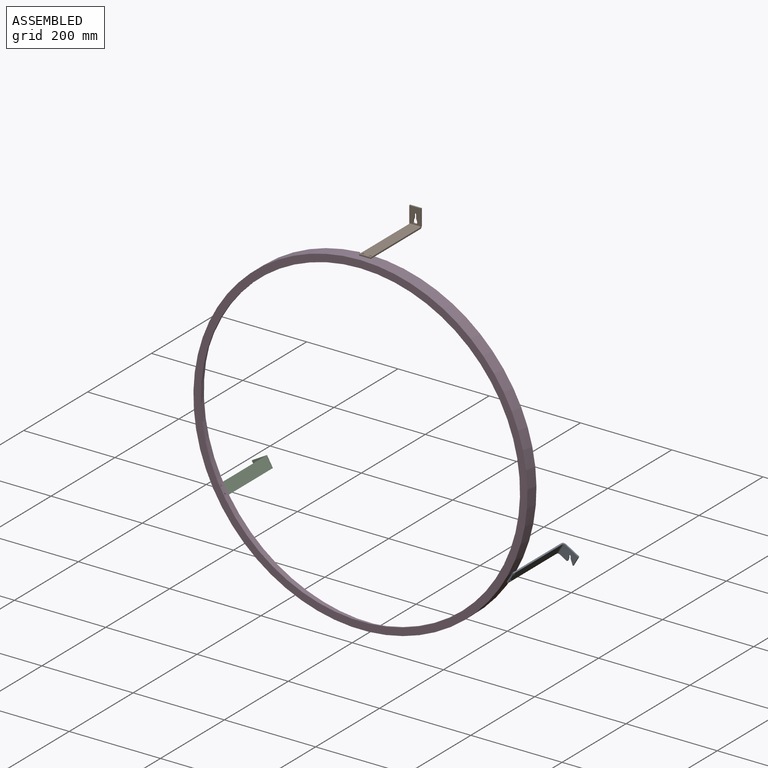
[diagram: assembled view]
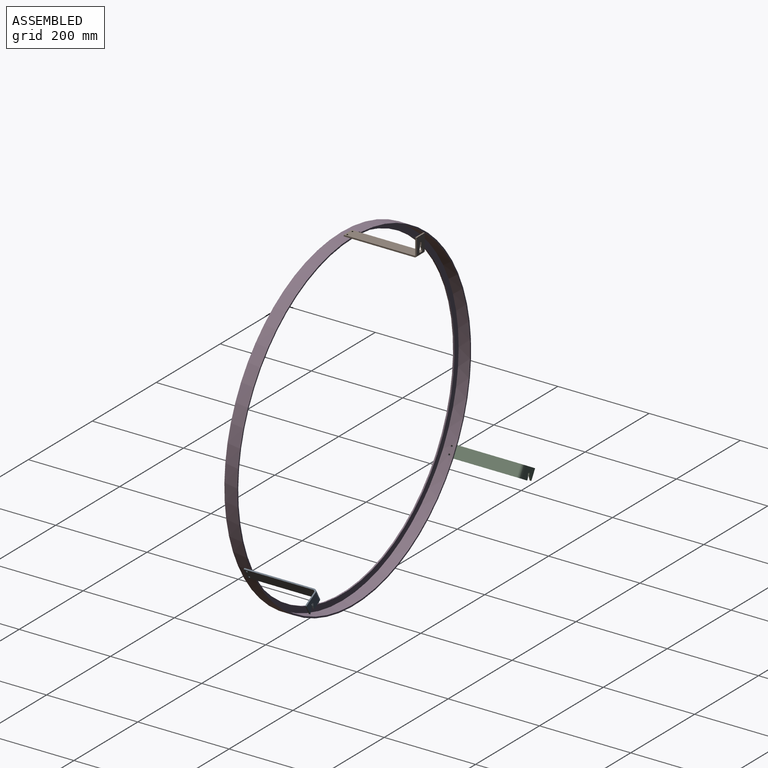
[diagram: assembled view, second angle]
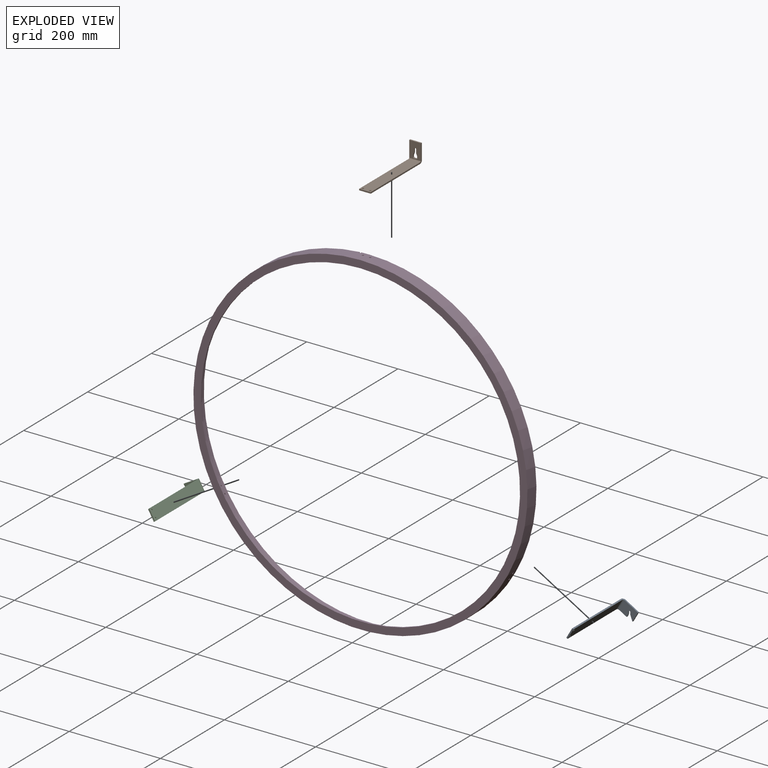
[diagram: exploded view]
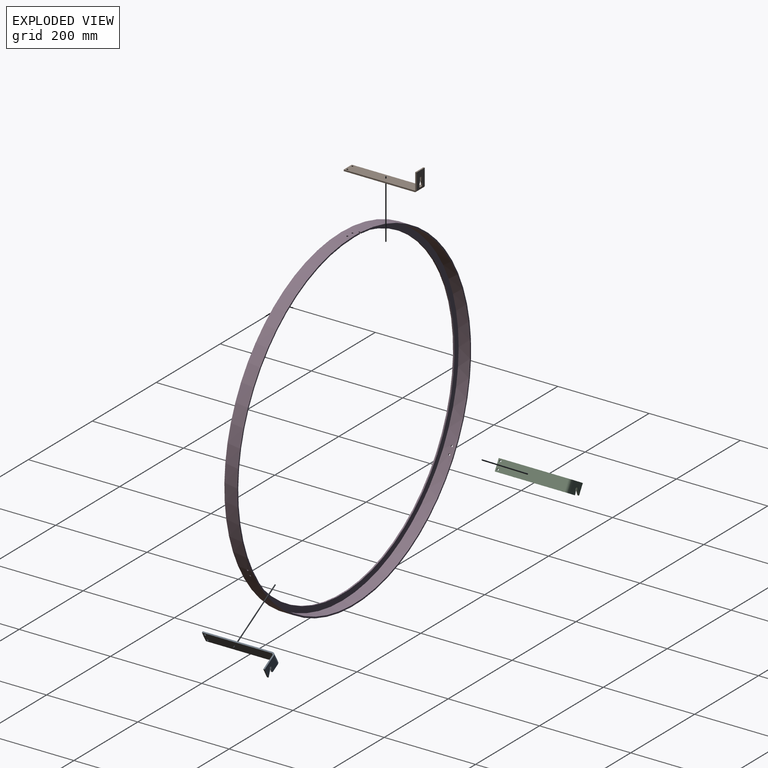
[diagram: exploded view, second angle]
ASSEMBLY  parts=4 mates=6
PART A: 23 faces, bbox 25.3x40x160 mm
  f0: plane 4.07x3.1mm, normal (-0.5,0.87,0), area 14.6mm2, adj f1,f7,f8,f9
  f1: cylinder r=2.4mm len=4.48mm, axis (0,0,-1), area 23.4mm2, adj f0,f2,f8,f9
  f2: plane 4.07x3.1mm, normal (0.5,-0.87,0), area 14.6mm2, adj f1,f3,f8,f9
  f3: plane 6.4x3.1mm, normal (0.17,-0.98,0), area 20.1mm2, adj f2,f8,f9,f11
  f4: plane 18.3x3.1mm, normal (-1,0,0), area 56.7mm2, adj f8,f9,f11,f20
  f5: plane 32.9x3.1mm, normal (1,0,0), area 102mm2, adj f6,f8,f9,f19
  f6: plane 23.53x3.1mm, normal (0,-1,0), area 73mm2, adj f5,f8,f9,f10
  f7: plane 9.98x8.37mm, normal (-0.77,0.64,0), area 40.4mm2, adj f0,f8,f9,f10
  f8: plane 32.9x25.3mm, normal (0,0,-1), area 712.4mm2, adj f0,f1,f2,f3,f4,f5,f6,f7
  f9: plane 32.9x25.3mm, normal (0,0,1), area 712.4mm2, adj f0,f1,f2,f3,f4,f5,f6,f7
  f10: plane 3.1x0.77mm, normal (-0.91,-0.42,0), area 2.6mm2, adj f6,f7,f8,f9
  f11: plane 3.1x0.99mm, normal (-0.64,-0.77,0), area 4mm2, adj f3,f4,f8,f9
  f12: plane 152.9x3.1mm, normal (-1,0,0), area 474mm2, adj f13,f17,f18,f20
  f13: plane 25.3x3.1mm, normal (0,0,1), area 78.4mm2, adj f12,f14,f17,f18
  f14: plane 152.9x3.1mm, normal (1,0,0), area 474mm2, adj f13,f17,f18,f19
  f15: cylinder r=1.98mm len=3.95mm, axis (0,1,0), area 38.5mm2, adj f17,f18
  f16: cylinder r=1.98mm len=3.95mm, axis (0,1,0), area 38.5mm2, adj f17,f18
  f17: plane 152.9x25.3mm, normal (0,1,0), area 3843.9mm2, adj f12,f13,f14,f15,f16,f21
  f18: plane 152.9x25.3mm, normal (0,-1,0), area 3843.9mm2, adj f12,f13,f14,f15,f16,f22
  f19: plane 7.1x7.1mm, normal (1,0,0), area 27mm2, adj f5,f14,f21,f22
  f20: plane 7.1x7.1mm, normal (-1,0,0), area 27mm2, adj f4,f12,f21,f22
  f21: cylinder r=7.1mm len=25.3mm, axis (1,0,0), area 282.2mm2, adj f8,f17,f19,f20
  f22: cylinder r=4mm len=25.3mm, axis (1,0,0), area 159mm2, adj f9,f18,f19,f20
PART B: 28 faces, bbox 25.3x40x160 mm
  f0: plane 4.2x3.1mm, normal (0,-1,0), area 13mm2, adj f1,f14,f15,f16
  f1: cylinder r=2.4mm len=3.1mm, axis (0,0,-1), area 11.7mm2, adj f0,f2,f15,f16
  f2: plane 3.1x2.78mm, normal (1,0,0), area 8.6mm2, adj f1,f3,f15,f16
  f3: cylinder r=2.4mm len=3.1mm, axis (0,0,-1), area 2.9mm2, adj f2,f4,f15,f16
  f4: plane 4.63x3.1mm, normal (0.92,0.38,0), area 15.5mm2, adj f3,f5,f15,f16
  f5: plane 7.7x3.1mm, normal (1,0,0), area 23.9mm2, adj f4,f6,f15,f16
  f6: cylinder r=2.4mm len=4.8mm, axis (0,0,-1), area 23.4mm2, adj f5,f7,f15,f16
  f7: plane 7.7x3.1mm, normal (-1,0,0), area 23.9mm2, adj f6,f8,f15,f16
  f8: plane 4.63x3.1mm, normal (-0.92,0.38,0), area 15.5mm2, adj f7,f9,f15,f16
  f9: cylinder r=2.4mm len=3.1mm, axis (0,0,-1), area 2.9mm2, adj f8,f10,f15,f16
  f10: plane 3.1x2.78mm, normal (-1,0,0), area 8.6mm2, adj f9,f14,f15,f16
  f11: plane 34.9x3.1mm, normal (-1,0,0), area 108.2mm2, adj f13,f15,f16,f25
  f12: plane 34.9x3.1mm, normal (1,0,0), area 108.2mm2, adj f13,f15,f16,f24
  f13: plane 25.3x3.1mm, normal (0,-1,0), area 78.4mm2, adj f11,f12,f15,f16
  f14: cylinder r=2.4mm len=3.1mm, axis (0,0,-1), area 11.7mm2, adj f0,f10,f15,f16
  f15: plane 34.9x25.3mm, normal (0,0,-1), area 753.5mm2, adj f0,f1,f2,f3,f4,f5,f6,f7
  f16: plane 34.9x25.3mm, normal (0,0,1), area 753.5mm2, adj f0,f1,f2,f3,f4,f5,f6,f7
  f17: plane 154.9x3.1mm, normal (-1,0,0), area 480.2mm2, adj f18,f22,f23,f25
  f18: plane 25.3x3.1mm, normal (0,0,1), area 78.4mm2, adj f17,f19,f22,f23
  f19: plane 154.9x3.1mm, normal (1,0,0), area 480.2mm2, adj f18,f22,f23,f24
  f20: cylinder r=1.98mm len=3.95mm, axis (0,1,0), area 38.5mm2, adj f22,f23
  f21: cylinder r=1.98mm len=3.95mm, axis (0,1,0), area 38.5mm2, adj f22,f23
  f22: plane 154.9x25.3mm, normal (0,1,0), area 3894.5mm2, adj f17,f18,f19,f20,f21,f26
  f23: plane 154.9x25.3mm, normal (0,-1,0), area 3894.5mm2, adj f17,f18,f19,f20,f21,f27
  f24: plane 5.1x5.1mm, normal (1,0,0), area 17.3mm2, adj f12,f19,f26,f27
  f25: plane 5.1x5.1mm, normal (-1,0,0), area 17.3mm2, adj f11,f17,f26,f27
  f26: cylinder r=5.1mm len=25.3mm, axis (1,0,0), area 202.7mm2, adj f15,f22,f24,f25
  f27: cylinder r=2mm len=25.3mm, axis (1,0,0), area 79.5mm2, adj f16,f23,f24,f25
PART C: 23 faces, bbox 25.3x40x160 mm
  f0: plane 23.53x3.1mm, normal (0,-1,0), area 73mm2, adj f1,f8,f9,f10
  f1: plane 32.9x3.1mm, normal (-1,0,0), area 102mm2, adj f0,f8,f9,f20
  f2: plane 18.3x3.1mm, normal (1,0,0), area 56.7mm2, adj f8,f9,f11,f19
  f3: plane 6.4x3.1mm, normal (-0.17,-0.98,0), area 20.1mm2, adj f4,f8,f9,f11
  f4: plane 4.07x3.1mm, normal (-0.5,-0.87,0), area 14.6mm2, adj f3,f5,f8,f9
  f5: cylinder r=2.4mm len=4.48mm, axis (0,0,-1), area 23.4mm2, adj f4,f6,f8,f9
  f6: plane 4.07x3.1mm, normal (0.5,0.87,0), area 14.6mm2, adj f5,f7,f8,f9
  f7: plane 9.98x8.37mm, normal (0.77,0.64,0), area 40.4mm2, adj f6,f8,f9,f10
  f8: plane 32.9x25.3mm, normal (0,0,-1), area 712.4mm2, adj f0,f1,f2,f3,f4,f5,f6,f7
  f9: plane 32.9x25.3mm, normal (0,0,1), area 712.4mm2, adj f0,f1,f2,f3,f4,f5,f6,f7
  f10: plane 3.1x0.77mm, normal (0.91,-0.42,0), area 2.6mm2, adj f0,f7,f8,f9
  f11: plane 3.1x0.99mm, normal (0.64,-0.77,0), area 4mm2, adj f2,f3,f8,f9
  f12: plane 152.9x3.1mm, normal (-1,0,0), area 474mm2, adj f13,f17,f18,f20
  f13: plane 25.3x3.1mm, normal (0,0,1), area 78.4mm2, adj f12,f14,f17,f18
  f14: plane 152.9x3.1mm, normal (1,0,0), area 474mm2, adj f13,f17,f18,f19
  f15: cylinder r=1.98mm len=3.95mm, axis (0,1,0), area 38.5mm2, adj f17,f18
  f16: cylinder r=1.98mm len=3.95mm, axis (0,1,0), area 38.5mm2, adj f17,f18
  f17: plane 152.9x25.3mm, normal (0,1,0), area 3843.9mm2, adj f12,f13,f14,f15,f16,f21
  f18: plane 152.9x25.3mm, normal (0,-1,0), area 3843.9mm2, adj f12,f13,f14,f15,f16,f22
  f19: plane 7.1x7.1mm, normal (1,0,0), area 27mm2, adj f2,f14,f21,f22
  f20: plane 7.1x7.1mm, normal (-1,0,0), area 27mm2, adj f1,f12,f21,f22
  f21: cylinder r=7.1mm len=25.3mm, axis (1,0,0), area 282.2mm2, adj f8,f17,f19,f20
  f22: cylinder r=4mm len=25.3mm, axis (1,0,0), area 159mm2, adj f9,f18,f19,f20
PART D: 15 faces, bbox 732x28.3x732 mm
  f0: cylinder r=366mm len=732mm, axis (0,1,0), area 64873mm2, adj f2,f5,f6,f7,f8,f9,f10,f11
  f1: cylinder r=362.9mm len=725.8mm, axis (0,1,0), area 57254.3mm2, adj f4,f5,f6,f7,f8,f9,f10,f11
  f2: plane 732x732mm, normal (0,-1,0), area 36539.7mm2, adj f0,f3
  f3: cylinder r=349.75mm len=699.5mm, axis (0,1,0), area 6812.4mm2, adj f2,f4
  f4: plane 725.8x725.8mm, normal (0,1,0), area 29441mm2, adj f1,f3
  f5: plane 732x732mm, normal (0,1,0), area 7087.8mm2, adj f0,f1,f7,f8
  f6: cylinder r=1.75mm len=3.5mm, axis (0,0,1), area 17.1mm2, adj f0,f1,f7,f8
  f7: plane 3.11x1.8mm, normal (1,0,0), area 5.6mm2, adj f0,f1,f5,f6
  f8: plane 3.1x1.8mm, normal (-1,0,0), area 5.6mm2, adj f0,f1,f5,f6
  f9: cylinder r=1.98mm len=3.95mm, axis (0,0,1), area 38.5mm2, adj f0,f1
  f10: cylinder r=1.98mm len=3.95mm, axis (0,0,1), area 38.5mm2, adj f0,f1
  f11: cylinder r=1.98mm len=5.01mm, axis (0.87,0,-0.5), area 38.5mm2, adj f0,f1
  f12: cylinder r=1.98mm len=5.01mm, axis (0.87,0,-0.5), area 38.5mm2, adj f0,f1
  f13: cylinder r=1.98mm len=5.01mm, axis (-0.87,0,-0.5), area 38.5mm2, adj f0,f1
  f14: cylinder r=1.98mm len=5.01mm, axis (-0.87,0,-0.5), area 38.5mm2, adj f0,f1
PLACE A rot(axis=(0.77,-0.45,0.45),104.5deg) t=(319.65,-3.1,-184.55)mm
PLACE B rot(axis=(0,-0.71,0.71),180deg) t=(0,-3.1,369.1)mm
PLACE C rot(axis=(0.77,0.45,-0.45),104.5deg) t=(-319.65,-3.1,-184.55)mm
PLACE D at identity
MATE cylindrical D.f12 <-> A.f16  axis (0.87,0,-0.5) through (320.94,-155,-176.06)mm
MATE cylindrical A.f15 <-> D.f11  axis (-0.87,0,0.5) through (312.97,-155,-189.93)mm
MATE cylindrical D.f10 <-> B.f21  axis (0,0,1) through (-8,-155,365.97)mm
MATE cylindrical C.f16 <-> D.f13  axis (0.87,0,0.5) through (-312.97,-155,-189.93)mm
MATE cylindrical D.f9 <-> B.f20  axis (0,0,1) through (8,-155,365.97)mm
MATE cylindrical C.f15 <-> D.f14  axis (0.87,0,0.5) through (-320.97,-155,-176.07)mm
